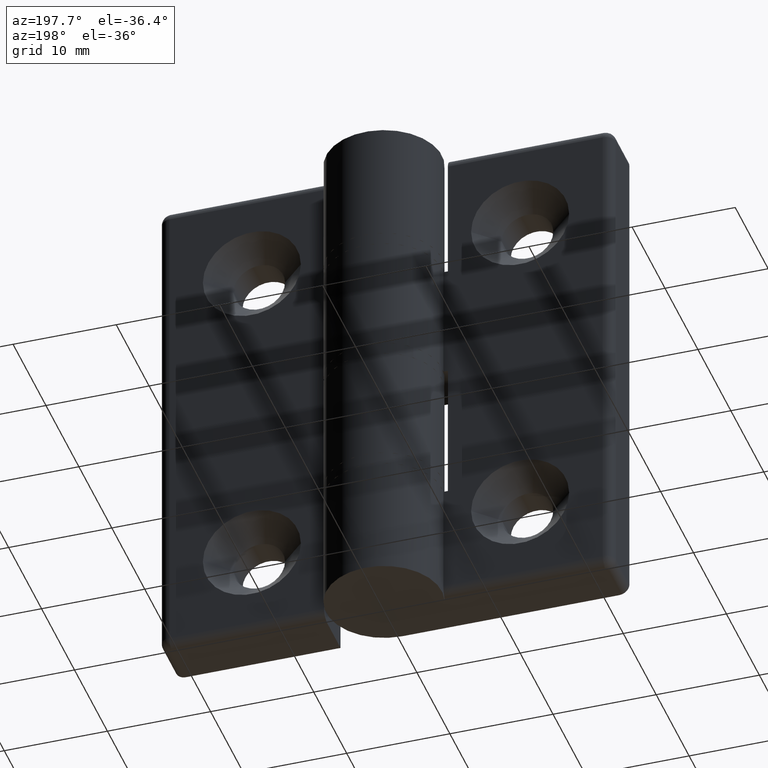
[diagram: clean part render]
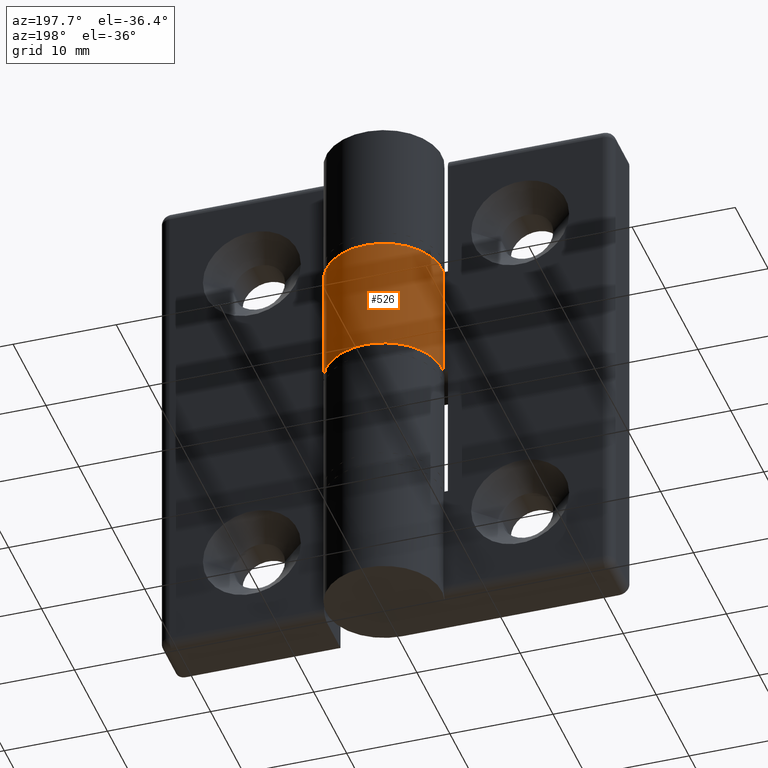
[diagram: same view with one face highlighted and labeled with its STEP entity id]
A machine part, auxiliary view. The second image highlights one B-rep face of the part: STEP entity #526.
In plain terms, the highlighted cylindrical surface (partial cylindrical patch) has radius 5.6 mm, axis along (0, 0, -1).
Its self-contained STEP definition (entity closure, byte-faithful):
#110=FACE_OUTER_BOUND('',#156,.T.);
#156=EDGE_LOOP('',(#471,#472,#473,#474));
#183=LINE('',#847,#214);
#198=LINE('',#909,#229);
#214=VECTOR('',#665,11.4);
#229=VECTOR('',#734,11.4);
#249=CIRCLE('',#573,5.6);
#251=CIRCLE('',#576,5.6);
#276=VERTEX_POINT('',#844);
#277=VERTEX_POINT('',#846);
#291=VERTEX_POINT('',#884);
#294=VERTEX_POINT('',#892);
#329=EDGE_CURVE('',#277,#276,#183,.T.);
#346=EDGE_CURVE('',#291,#277,#249,.T.);
#351=EDGE_CURVE('',#276,#294,#251,.T.);
#357=EDGE_CURVE('',#294,#291,#198,.T.);
#471=ORIENTED_EDGE('',*,*,#346,.T.);
#472=ORIENTED_EDGE('',*,*,#329,.T.);
#473=ORIENTED_EDGE('',*,*,#351,.T.);
#474=ORIENTED_EDGE('',*,*,#357,.T.);
#497=CYLINDRICAL_SURFACE('',#586,5.6);
#526=ADVANCED_FACE('',(#110),#497,.T.);
#573=AXIS2_PLACEMENT_3D('',#885,#704,#705);
#576=AXIS2_PLACEMENT_3D('',#894,#713,#714);
#586=AXIS2_PLACEMENT_3D('',#912,#738,#739);
#665=DIRECTION('',(0.,0.,1.));
#704=DIRECTION('center_axis',(0.,0.,1.));
#705=DIRECTION('ref_axis',(-1.,0.,0.));
#713=DIRECTION('center_axis',(0.,0.,-1.));
#714=DIRECTION('ref_axis',(-1.,0.,0.));
#734=DIRECTION('',(0.,0.,-1.));
#738=DIRECTION('center_axis',(0.,0.,-1.));
#739=DIRECTION('ref_axis',(-1.,0.,0.));
#844=CARTESIAN_POINT('',(-5.56776436283003,5.,-13.));
#846=CARTESIAN_POINT('',(-5.56776436283003,5.,-24.4));
#847=CARTESIAN_POINT('',(-5.56776436283003,5.,0.));
#884=CARTESIAN_POINT('',(0.,0.,-24.4));
#885=CARTESIAN_POINT('Origin',(-6.66133814775094E-15,5.6,-24.4));
#892=CARTESIAN_POINT('',(0.,0.,-13.));
#894=CARTESIAN_POINT('Origin',(-6.66133814775094E-15,5.6,-13.));
#909=CARTESIAN_POINT('',(0.,0.,0.));
#912=CARTESIAN_POINT('Origin',(-6.66133814775094E-15,5.6,0.));